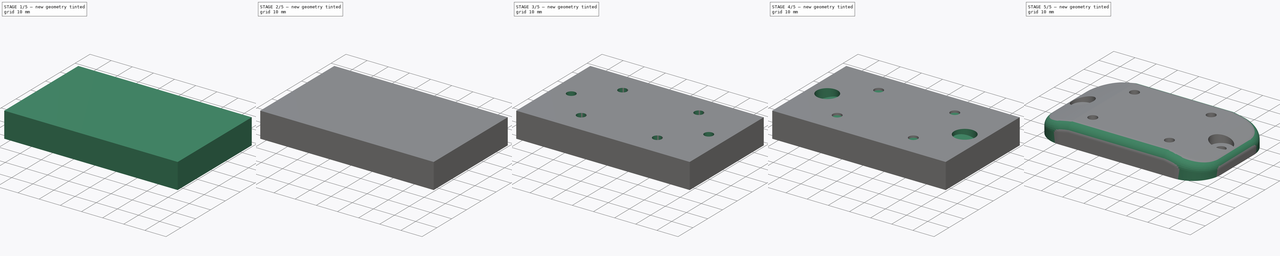
[diagram: build sequence overview — one tinted view per stage of 5, left to right]
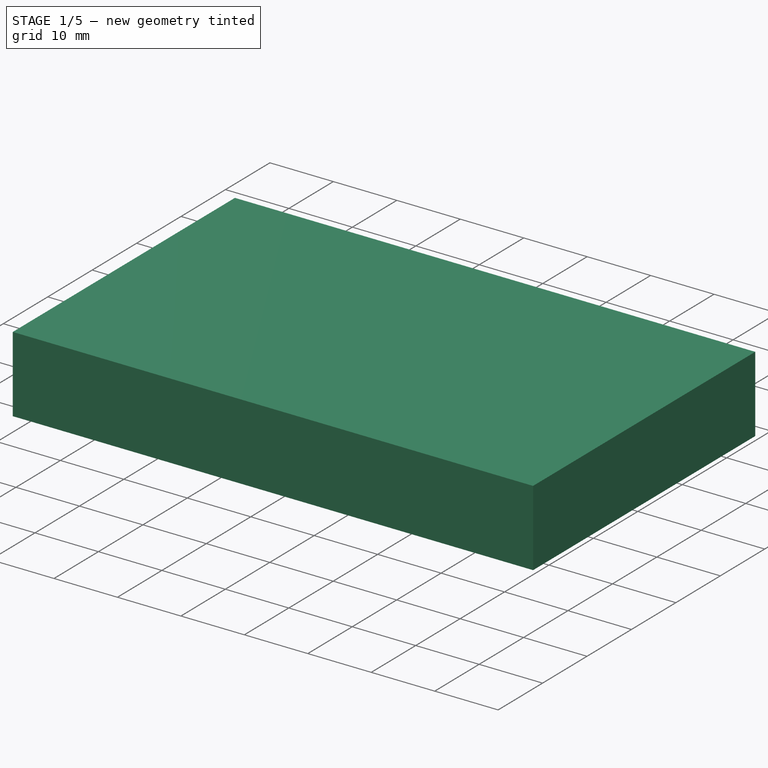
[diagram: stage 1 of 5 — iso view after this stage's code; geometry added in this stage tinted green]
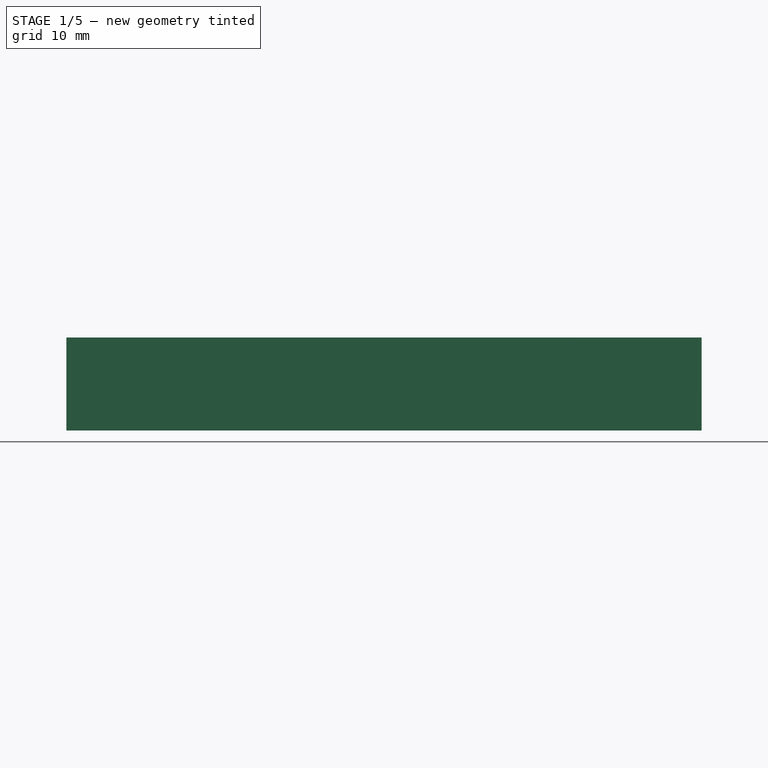
[diagram: stage 1 of 5 — front view after this stage's code; geometry added in this stage tinted green]
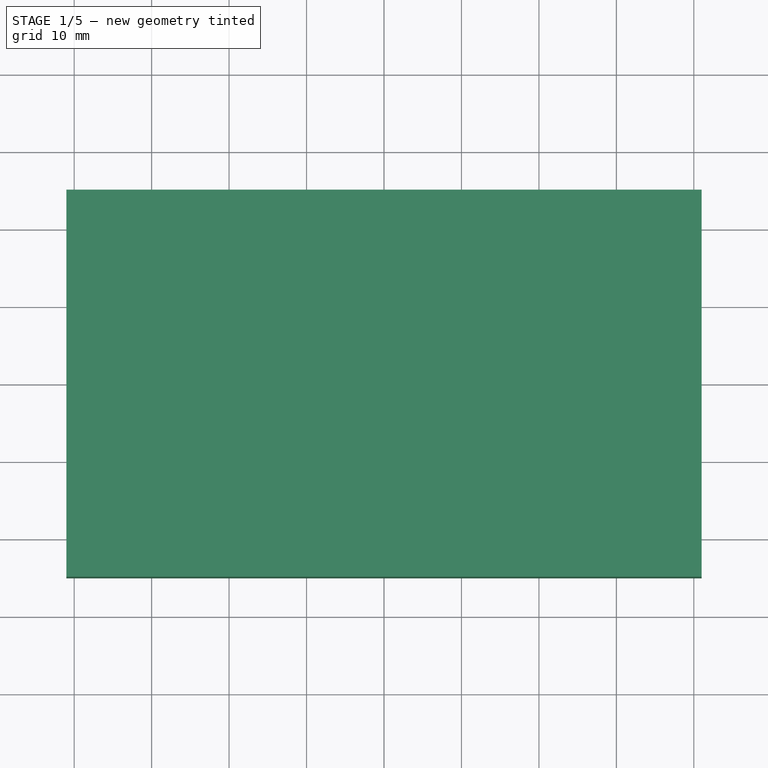
[diagram: stage 1 of 5 — top view after this stage's code; geometry added in this stage tinted green]
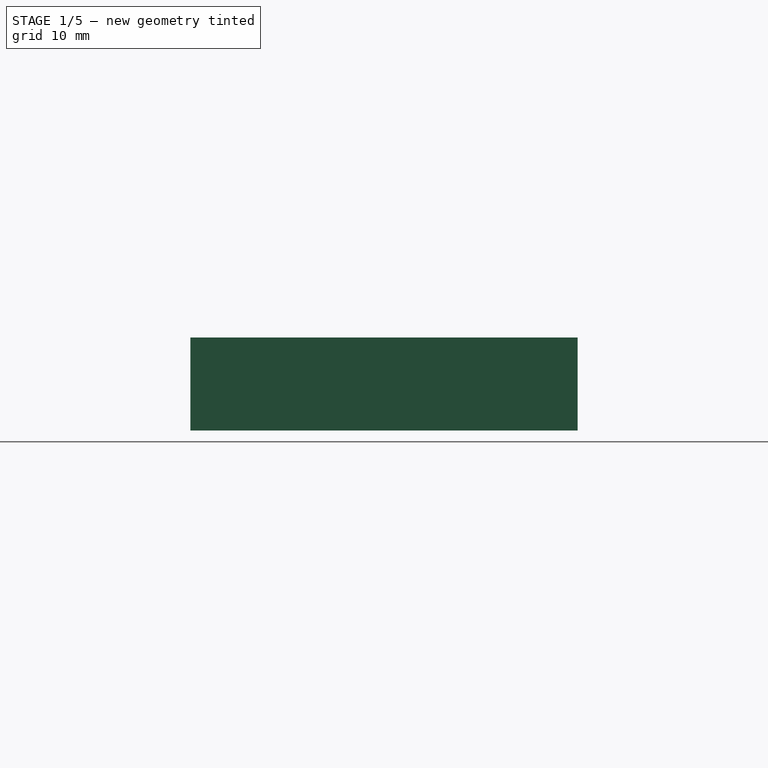
[diagram: stage 1 of 5 — right view after this stage's code; geometry added in this stage tinted green]
FCSTD DOCUMENT  (FreeCAD 0.17R13510 +12 (Git))
Label: caster_adapter
Comment: <copyright redacted>\nAll rights reserved.\n\nRedistribution and use in source and binary forms, with or without\nmodification, are permitted provided that the following conditions\nare... (+1106 chars)
License: All rights reserved
LicenseURL: http://en.wikipedia.org/wiki/All_rights_reserved
objects: Sketcher::SketchObject×11, PartDesign::Pad×7, PartDesign::Fillet×4, PartDesign::Pocket×4, PartDesign::Body×2, Part::MultiCommon×1
note: 40 computed .brp shape members not serialized (recipe doc carries the construction recipe); baked Part::Feature solids carry a one-line shape summary decoded from their .brp

FEATURE [PartDesign::Body] Body  label="Body外側形状"
  Group = -> [Sketch,Pad,Fillet,Fillet002]
  Origin = -> Origin
  Tip = -> Fillet002
FEATURE [Sketcher::SketchObject] Sketch010
  MapMode = 5
  Placement = pos=(0,0,0) rot=(1,0,0;1.5708rad)
  Support = -> [XZ_Plane001]
  sketch-geometry (4):
    g0: LineSegment StartX=-41 StartY=11 StartZ=0 EndX=41 EndY=11 EndZ=0
    g1: LineSegment StartX=41 StartY=11 StartZ=0 EndX=41 EndY=-1 EndZ=0
    g2: LineSegment StartX=41 StartY=-1 StartZ=0 EndX=-41 EndY=-1 EndZ=0
    g3: LineSegment StartX=-41 StartY=-1 StartZ=0 EndX=-41 EndY=11 EndZ=0
  constraints (12):
    c: Coincident(g0,g1)
    c: Coincident(g1,g2)
    c: Coincident(g2,g3)
    c: Coincident(g3,g0)
    c: Horizontal(g0)
    c: Horizontal(g2)
    c: Vertical(g1)
    c: Vertical(g3)
    c: Symmetric(g0,g0,g-2)
    c: DistanceX(g0,g0) = 82
    c: DistanceY(g2,g-1) = 1
    c: DistanceY(g-1,g0) = 11
FEATURE [PartDesign::Pad] Pad006  label="Pad001"
  Length = 50
  Length2 = 100
  Midplane = true
  Placement = pos=(0,0,0) rot=(1,0,0;1.5708rad)
  Profile = -> Sketch010
  Type = 0
FEATURE [PartDesign::Pocket] Pocket008
  BaseFeature = -> Pad006
  Length = 44
  Length2 = 100
  Midplane = true
  Placement = pos=(0,0,0) rot=(1,0,0;1.5708rad)
  Profile = -> Sketch001
  Type = 0
FEATURE [PartDesign::Fillet] Fillet003  label="Fillet内側縦"
  Base = -> Pocket008 [Edge18,Edge24,Edge19,Edge22]
  BaseFeature = -> Pocket008
  Placement = pos=(0,0,0) rot=(1,0,0;1.5708rad)
  Radius = 11
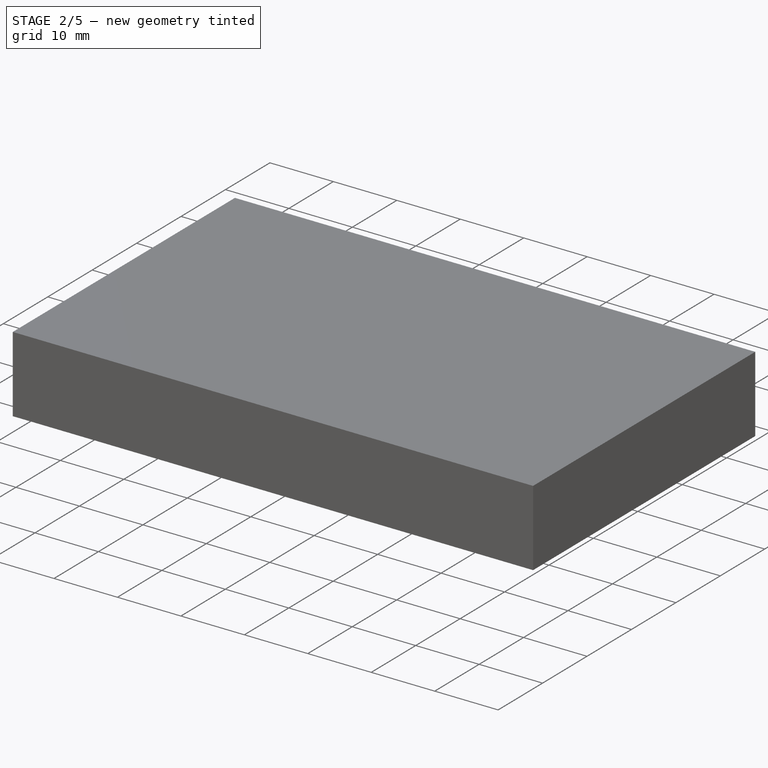
[diagram: stage 2 of 5 — iso view after this stage's code; geometry added in this stage tinted green]
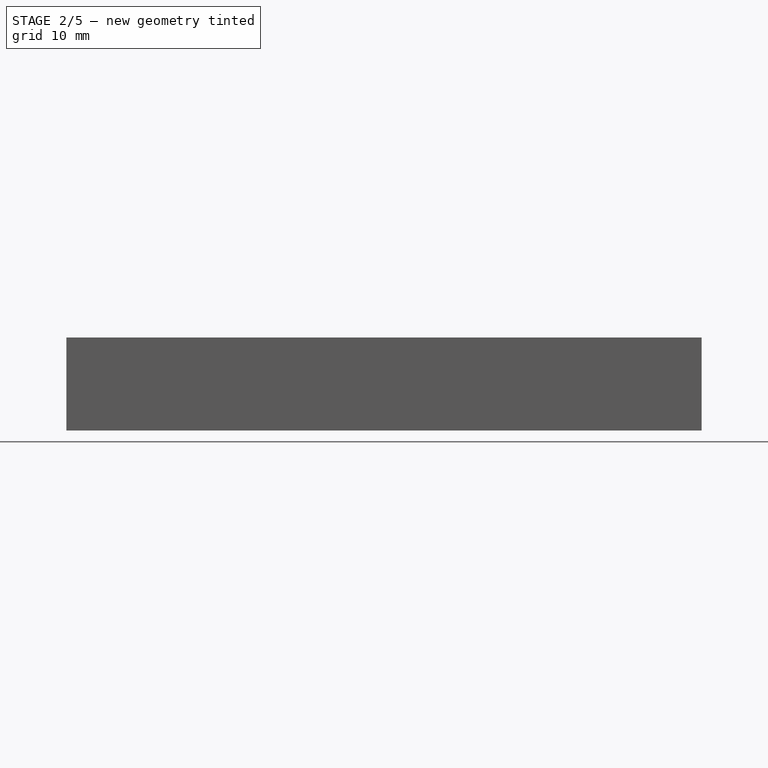
[diagram: stage 2 of 5 — front view after this stage's code; geometry added in this stage tinted green]
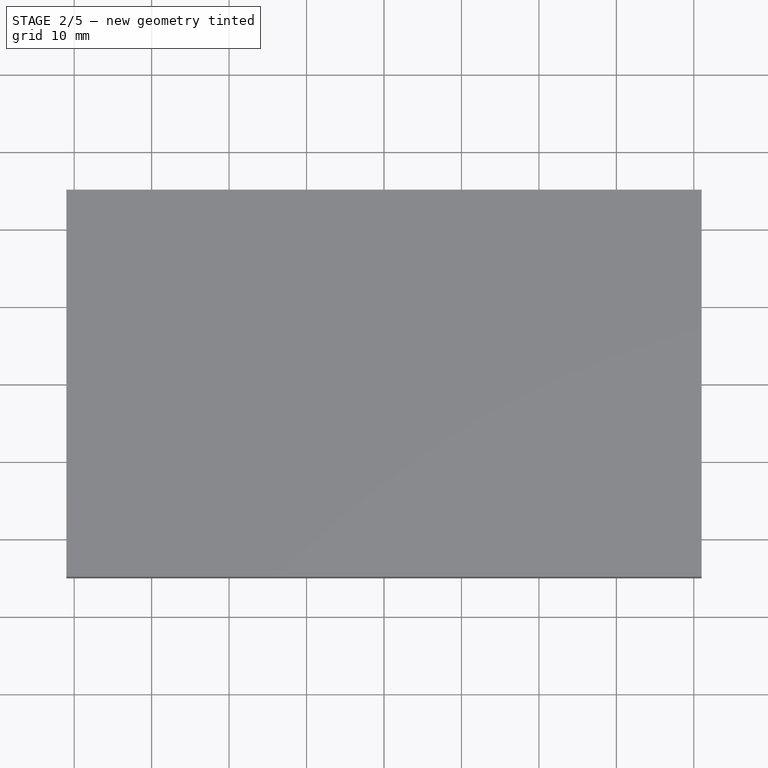
[diagram: stage 2 of 5 — top view after this stage's code; geometry added in this stage tinted green]
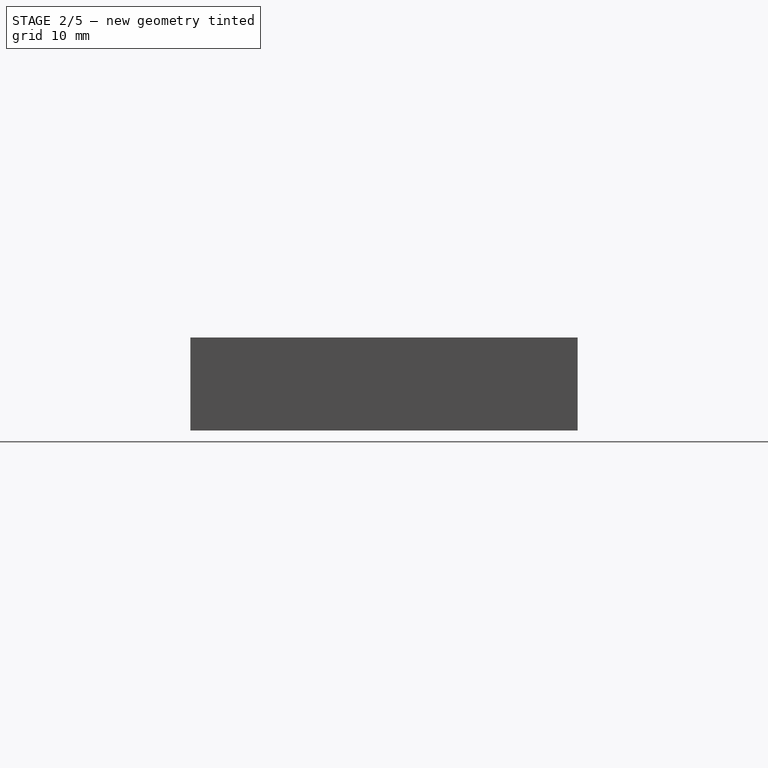
[diagram: stage 2 of 5 — right view after this stage's code; geometry added in this stage tinted green]
FEATURE [PartDesign::Fillet] Fillet004  label="Fillet内側一周"
  Base = -> Fillet003 [Face14,Face15,Face16]
  BaseFeature = -> Fillet003
  Placement = pos=(0,0,0) rot=(1,0,0;1.5708rad)
  Radius = 2
FEATURE [PartDesign::Pad] Pad011  label="Pad壁1"
  BaseFeature = -> Fillet004
  Length = 46
  Length2 = 100
  Midplane = true
  Placement = pos=(0,0,0) rot=(1,0,0;1.5708rad)
  Profile = -> Sketch007
  Type = 0
FEATURE [PartDesign::Pad] Pad012  label="Pad壁2a"
  BaseFeature = -> Pad011
  Length = 2
  Length2 = 100
  Midplane = true
  Placement = pos=(0,0,0) rot=(1,0,0;1.5708rad)
  Profile = -> Sketch008
  Type = 0
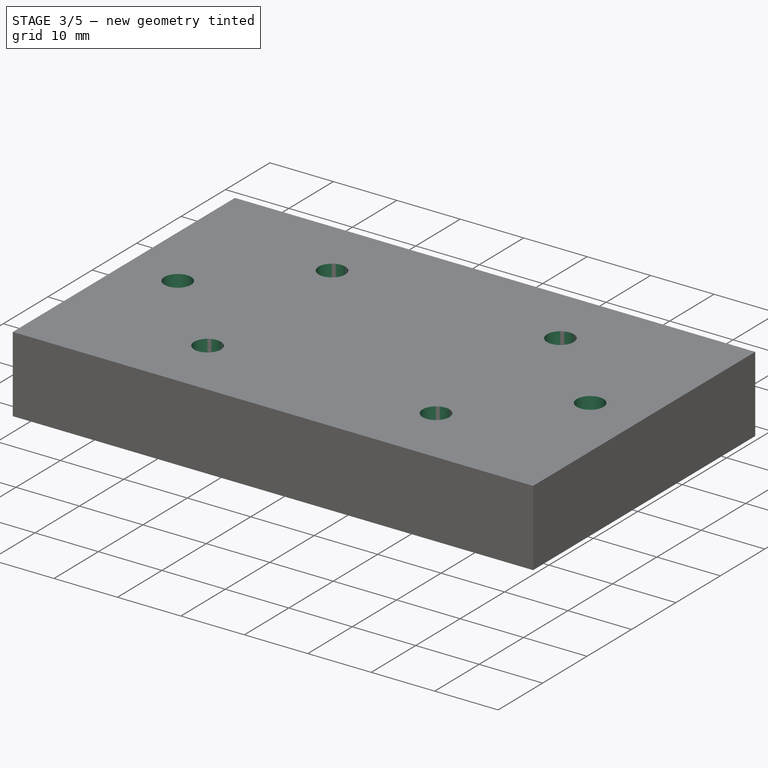
[diagram: stage 3 of 5 — iso view after this stage's code; geometry added in this stage tinted green]
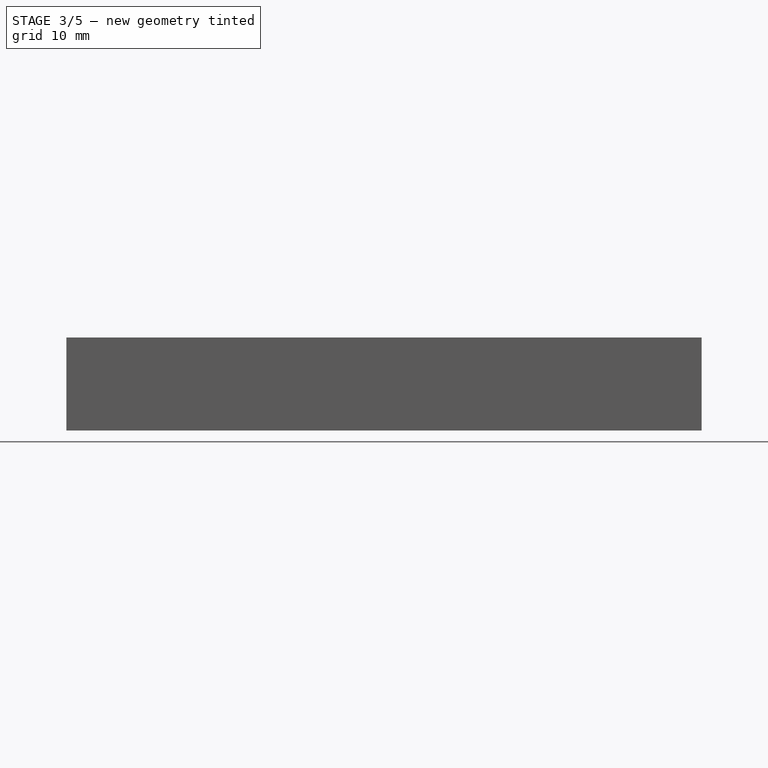
[diagram: stage 3 of 5 — front view after this stage's code; geometry added in this stage tinted green]
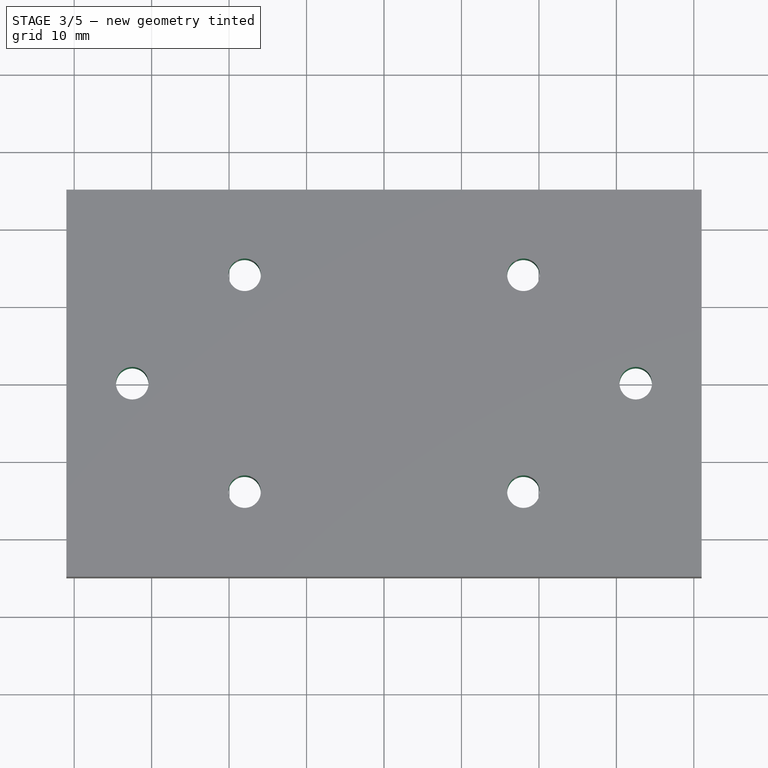
[diagram: stage 3 of 5 — top view after this stage's code; geometry added in this stage tinted green]
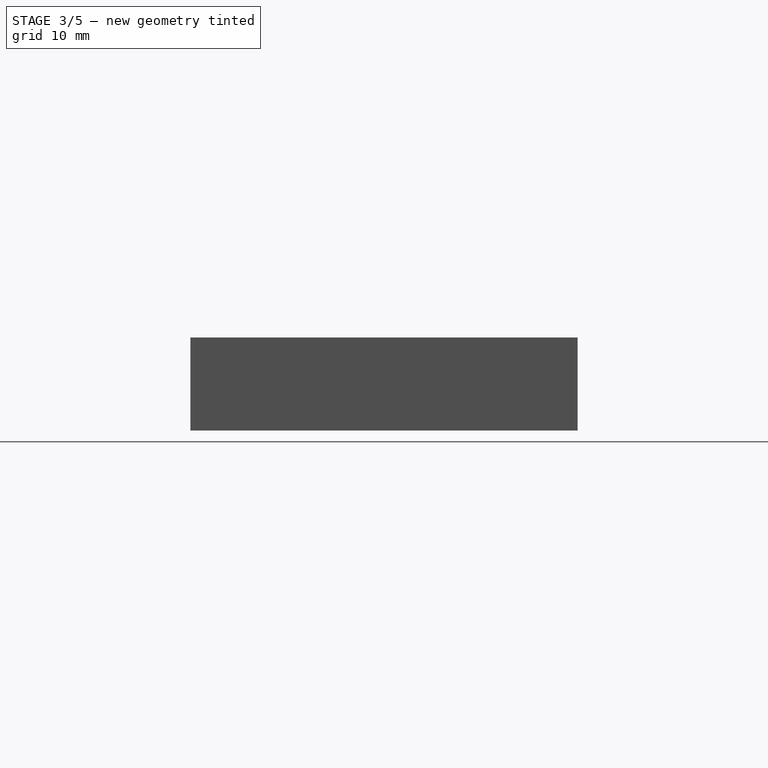
[diagram: stage 3 of 5 — right view after this stage's code; geometry added in this stage tinted green]
FEATURE [PartDesign::Pad] Pad013  label="Pad壁2b"
  BaseFeature = -> Pad012
  Length = 2
  Length2 = 100
  Midplane = true
  Placement = pos=(0,0,0) rot=(1,0,0;1.5708rad)
  Profile = -> Sketch009
  Type = 0
FEATURE [PartDesign::Pad] Pad014  label="Pad車輪側"
  BaseFeature = -> Pad013
  Length = 11
  Length2 = 1
  Placement = pos=(0,0,0) rot=(1,0,0;1.5708rad)
  Profile = -> Sketch002
  Type = 4
FEATURE [PartDesign::Pad] Pad015  label="Pad本体側"
  BaseFeature = -> Pad014
  Length = 11
  Length2 = 1
  Placement = pos=(0,0,0) rot=(1,0,0;1.5708rad)
  Profile = -> Sketch003
  Type = 4
FEATURE [PartDesign::Pocket] Pocket  label="Pocket穴"
  BaseFeature = -> Pad015
  Length = 5
  Length2 = 100
  Midplane = true
  Placement = pos=(0,0,0) rot=(1,0,0;1.5708rad)
  Profile = -> Sketch004
  Type = 1
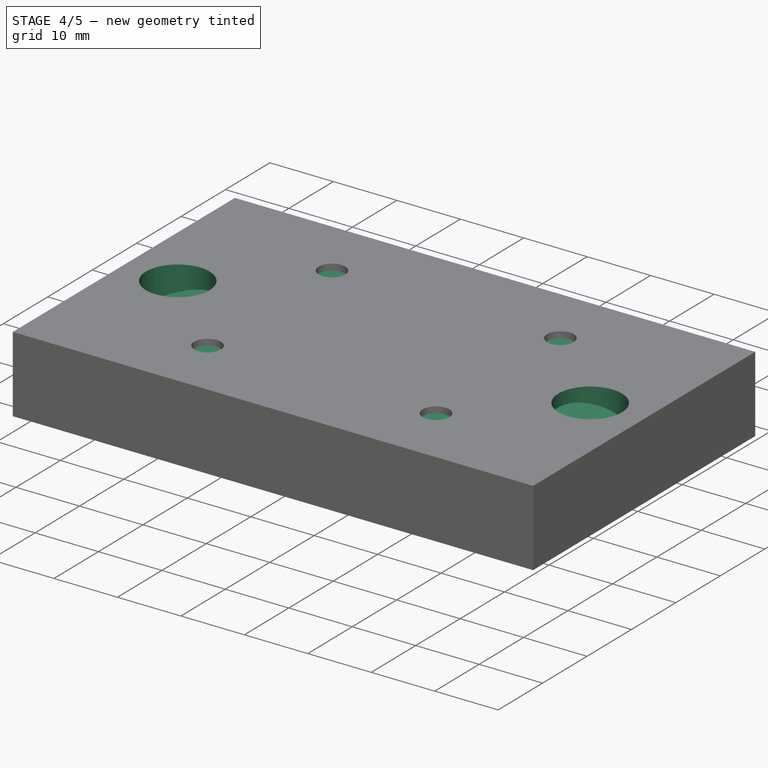
[diagram: stage 4 of 5 — iso view after this stage's code; geometry added in this stage tinted green]
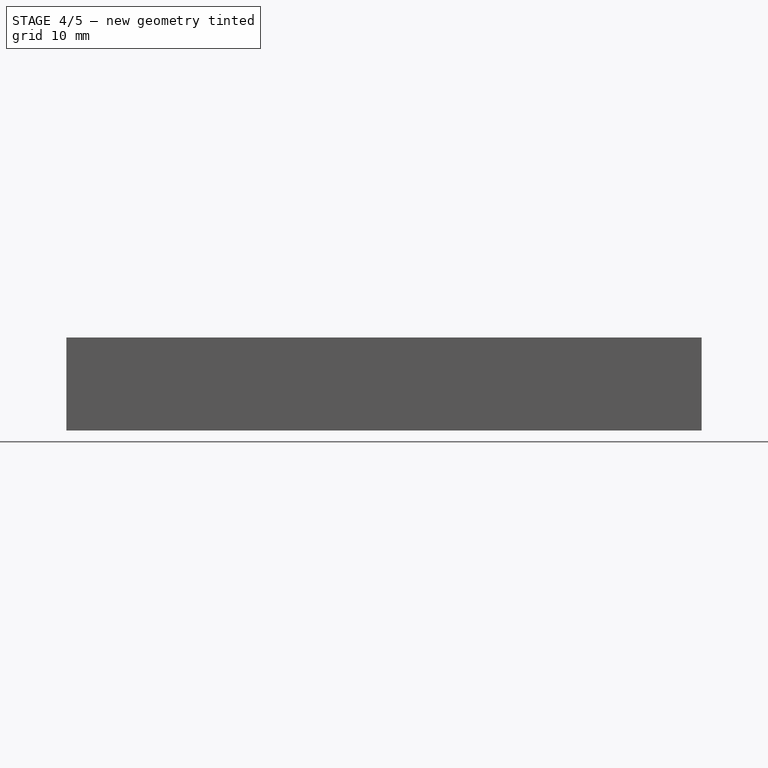
[diagram: stage 4 of 5 — front view after this stage's code; geometry added in this stage tinted green]
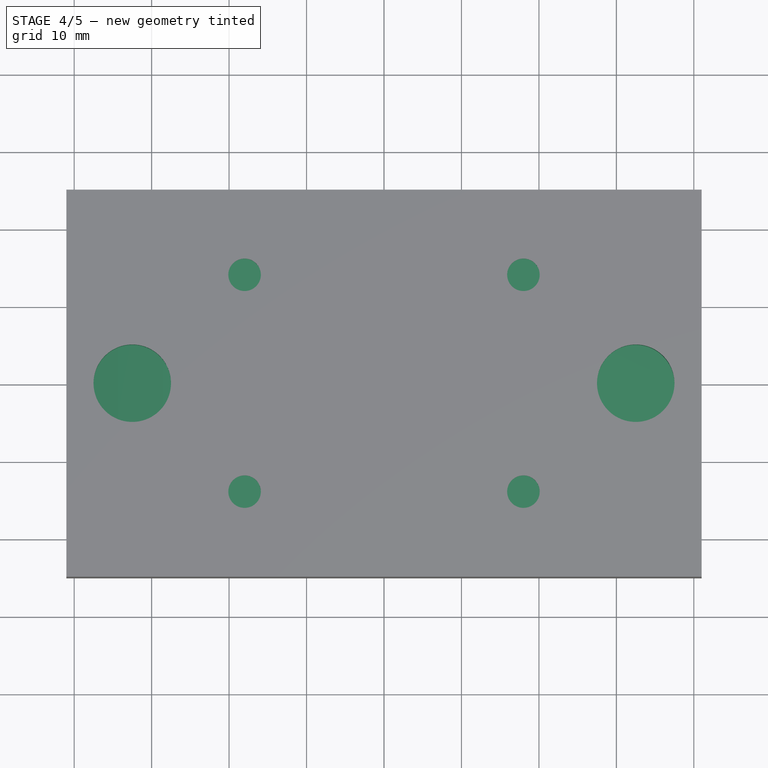
[diagram: stage 4 of 5 — top view after this stage's code; geometry added in this stage tinted green]
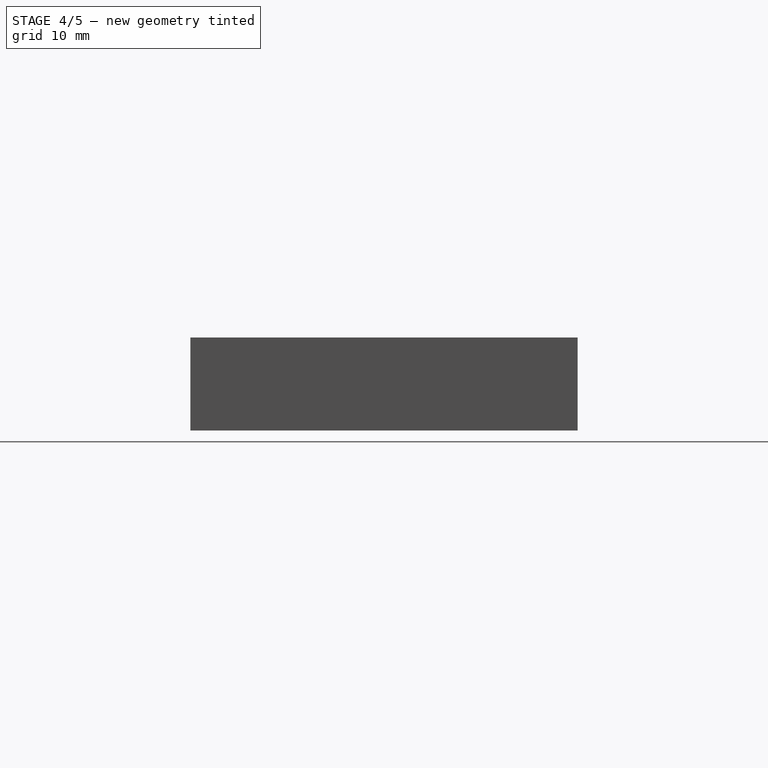
[diagram: stage 4 of 5 — right view after this stage's code; geometry added in this stage tinted green]
FEATURE [Sketcher::SketchObject] Sketch
  MapMode = 5
  Placement = pos=(0,0,0) rot=(1,0,0;1.5708rad)
  Support = -> [XZ_Plane]
  sketch-geometry (6):
    g0: LineSegment StartX=-40 StartY=5.69317 StartZ=0 EndX=-40 EndY=0 EndZ=0
    g1: LineSegment StartX=-40 StartY=0 StartZ=0 EndX=40 EndY=0 EndZ=0
    g2: LineSegment StartX=40 StartY=0 StartZ=0 EndX=40 EndY=5.69317 EndZ=0
    g3: ArcOfCircle CenterX=0 CenterY=-118 CenterZ=0 NormalX=0 NormalY=0 NormalZ=1 AngleXU=0 Radius=130 StartAngle=1.25803 EndAngle=1.39516
    g4: LineSegment StartX=22.7156 StartY=10 StartZ=0 EndX=-22.7156 EndY=10 EndZ=0
    g5: ArcOfCircle CenterX=0 CenterY=-118 CenterZ=0 NormalX=0 NormalY=0 NormalZ=1 AngleXU=0 Radius=130 StartAngle=1.74643 EndAngle=1.88356
  constraints (19):
    c: Vertical(g0)
    c: Coincident(g0,g1)
    c: Horizontal(g1)
    c: Coincident(g1,g2)
    c: Vertical(g2)
    c: Coincident(g3,g2)
    c: Coincident(g5,g0)
    c: Horizontal(g4)
    c: Equal(g3,g5)
    c: Coincident(g3,g4)
    c: Coincident(g5,g4)
    c: Coincident(g3,g5)
    c: PointOnObject(g3,g-2)
    c: PointOnObject(g0,g-1)
    c: Equal(g0,g2)
    c: Distance(g1) = 80
    c: Distance(g-1,g4) = 10
    c: DistanceY(g3,g-1) = 118
    c: Radius(g3) = 130
FEATURE [Sketcher::SketchObject] Sketch001
  MapMode = 5
  Placement = pos=(0,0,0) rot=(1,0,0;1.5708rad)
  Support = -> [XZ_Plane001]
  sketch-geometry (6):
    g0: LineSegment StartX=-38 StartY=4.22929 StartZ=0 EndX=-38 EndY=-1 EndZ=0
    g1: LineSegment StartX=-38 StartY=-1 StartZ=0 EndX=38 EndY=-1 EndZ=0
    g2: LineSegment StartX=38 StartY=-1 StartZ=0 EndX=38 EndY=4.22929 EndZ=0
    g3: ArcOfCircle CenterX=0 CenterY=-118 CenterZ=0 NormalX=0 NormalY=0 NormalZ=1 AngleXU=0 Radius=128 StartAngle=1.26938 EndAngle=1.39379
    g4: LineSegment StartX=22.5389 StartY=8 StartZ=0 EndX=-22.5389 EndY=8 EndZ=0
    g5: ArcOfCircle CenterX=0 CenterY=-118 CenterZ=0 NormalX=0 NormalY=0 NormalZ=1 AngleXU=0 Radius=128 StartAngle=1.7478 EndAngle=1.87221
  constraints (19):
    c: Vertical(g0)
    c: Coincident(g0,g1)
    c: Horizontal(g1)
    c: Coincident(g1,g2)
    c: Vertical(g2)
    c: Coincident(g3,g2)
    c: Coincident(g5,g0)
    c: Horizontal(g4)
    c: Equal(g3,g5)
    c: Coincident(g3,g4)
    c: Coincident(g5,g4)
    c: Coincident(g3,g5)
    c: PointOnObject(g3,g-2)
    c: Equal(g0,g2)
    c: Distance(g1) = 76
    c: Distance(g-1,g4) = 8
    c: DistanceY(g0,g-1) = 1
    c: DistanceY(g3,g-1) = 118
    c: Radius(g3) = 128
FEATURE [PartDesign::Pad] Pad
  Length = 48
  Length2 = 100
  Midplane = true
  Placement = pos=(0,0,0) rot=(1,0,0;1.5708rad)
  Profile = -> Sketch
  Type = 0
FEATURE [PartDesign::Pocket] Pocket009  label="Pocket車輪側"
  BaseFeature = -> Pocket
  Length = 1
  Length2 = 6
  Placement = pos=(0,0,0) rot=(1,0,0;1.5708rad)
  Profile = -> Sketch005
  Type = 4
FEATURE [PartDesign::Pocket] Pocket010  label="Pocket本体側"
  BaseFeature = -> Pocket009
  Length = 5
  Length2 = 100
  Placement = pos=(0,0,0) rot=(1,0,0;1.5708rad)
  Profile = -> Sketch006
  Reversed = true
  Type = 1
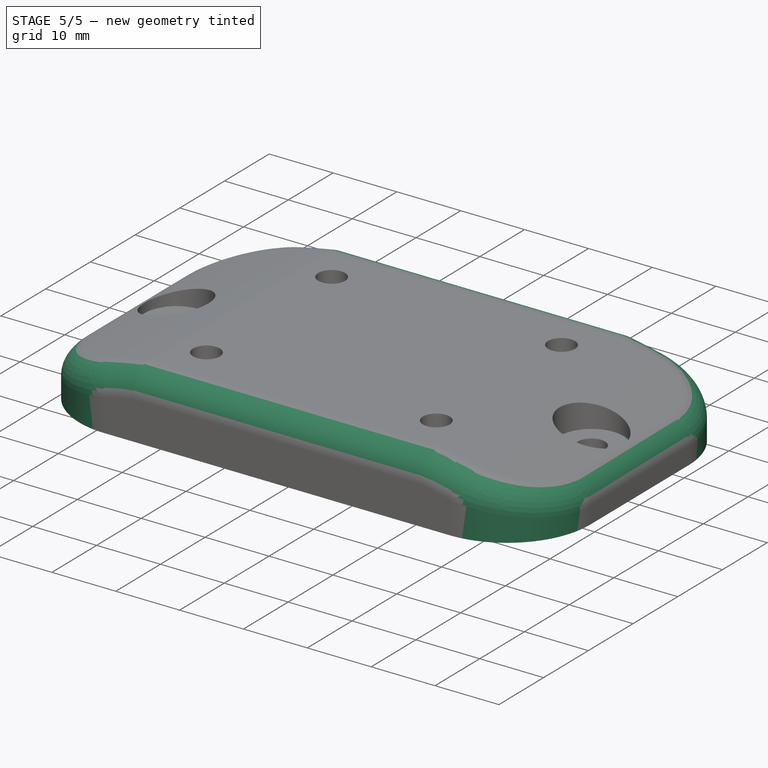
[diagram: stage 5 of 5 — iso view after this stage's code; geometry added in this stage tinted green]
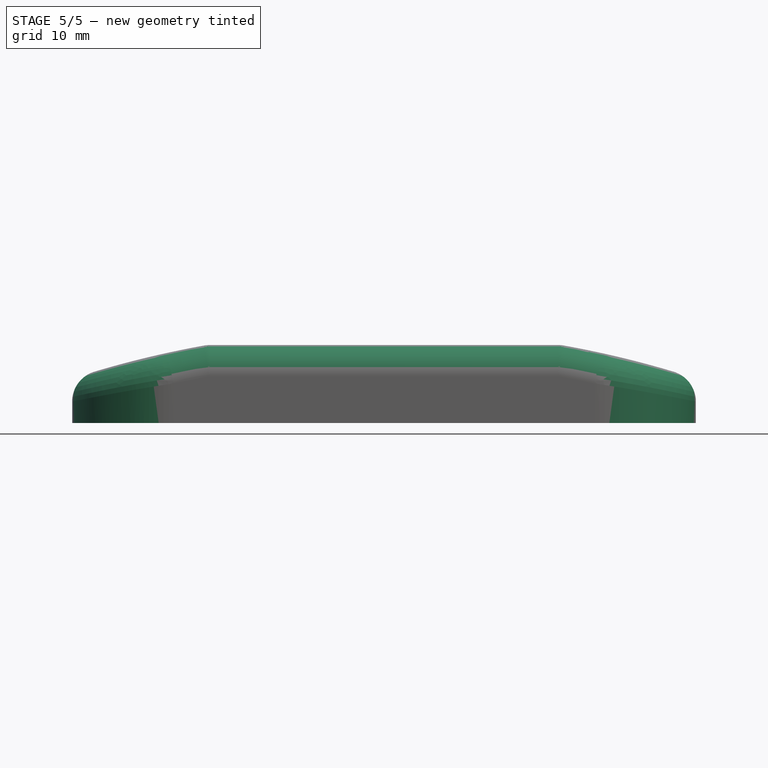
[diagram: stage 5 of 5 — front view after this stage's code; geometry added in this stage tinted green]
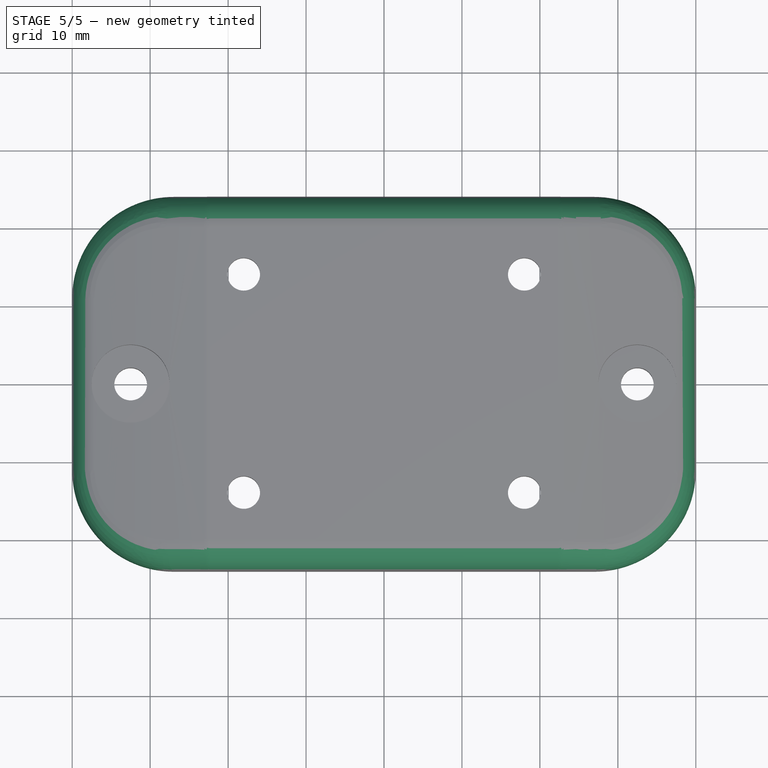
[diagram: stage 5 of 5 — top view after this stage's code; geometry added in this stage tinted green]
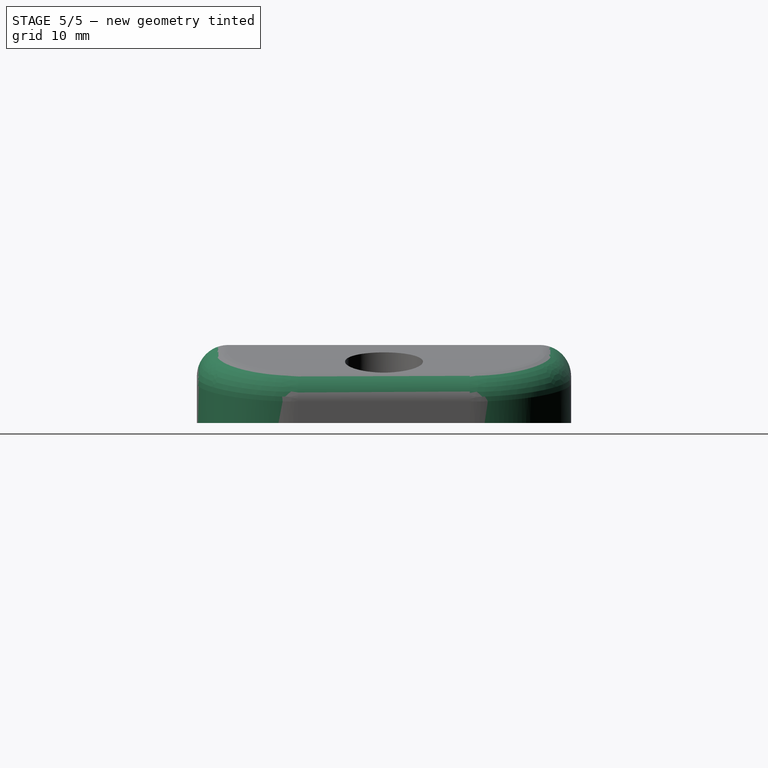
[diagram: stage 5 of 5 — right view after this stage's code; geometry added in this stage tinted green]
FEATURE [Sketcher::SketchObject] Sketch002
  MapMode = 5
  Support = -> [XY_Plane001]
  sketch-geometry (8):
    g0: LineSegment [constr] StartX=-18 StartY=14 StartZ=0 EndX=18 EndY=14 EndZ=0
    g1: LineSegment [constr] StartX=18 StartY=14 StartZ=0 EndX=18 EndY=-14 EndZ=0
    g2: LineSegment [constr] StartX=18 StartY=-14 StartZ=0 EndX=-18 EndY=-14 EndZ=0
    g3: LineSegment [constr] StartX=-18 StartY=-14 StartZ=0 EndX=-18 EndY=14 EndZ=0
    g4: Circle CenterX=-18 CenterY=14 CenterZ=0 NormalX=0 NormalY=0 NormalZ=1 AngleXU=0 Radius=7
    g5: Circle CenterX=-18 CenterY=-14 CenterZ=0 NormalX=0 NormalY=0 NormalZ=1 AngleXU=0 Radius=7
    g6: Circle CenterX=18 CenterY=-14 CenterZ=0 NormalX=0 NormalY=0 NormalZ=1 AngleXU=0 Radius=7
    g7: Circle CenterX=18 CenterY=14 CenterZ=0 NormalX=0 NormalY=0 NormalZ=1 AngleXU=0 Radius=7
  constraints (19):
    c: Coincident(g0,g1)
    c: Coincident(g1,g2)
    c: Coincident(g2,g3)
    c: Coincident(g3,g0)
    c: Horizontal(g0)
    c: Horizontal(g2)
    c: Vertical(g1)
    c: Vertical(g3)
    c: Symmetric(g0,g1,g-1)
    c: Distance(g1) = 28
    c: Distance(g0) = 36
    c: Coincident(g4,g0)
    c: Coincident(g5,g2)
    c: Coincident(g6,g1)
    c: Coincident(g7,g0)
    c: Equal(g4,g7)
    c: Equal(g4,g5)
    c: Equal(g4,g6)
    c: Radius(g4) = 7
FEATURE [Sketcher::SketchObject] Sketch003
  MapMode = 5
  Support = -> [XY_Plane001]
  sketch-geometry (2):
    g0: Circle CenterX=-32.5 CenterY=0 CenterZ=0 NormalX=0 NormalY=0 NormalZ=1 AngleXU=0 Radius=7
    g1: Circle CenterX=32.5 CenterY=0 CenterZ=0 NormalX=0 NormalY=0 NormalZ=1 AngleXU=0 Radius=7
  constraints (5):
    c: PointOnObject(g0,g-1)
    c: Equal(g0,g1)
    c: Symmetric(g1,g0,g-1)
    c: Distance(g0,g1) = 65
    c: Radius(g0) = 7
FEATURE [Sketcher::SketchObject] Sketch004
  MapMode = 5
  Support = -> [XY_Plane001]
  sketch-geometry (10):
    g0: LineSegment [constr] StartX=-18 StartY=14 StartZ=0 EndX=18 EndY=14 EndZ=0
    g1: LineSegment [constr] StartX=18 StartY=14 StartZ=0 EndX=18 EndY=-14 EndZ=0
    g2: LineSegment [constr] StartX=18 StartY=-14 StartZ=0 EndX=-18 EndY=-14 EndZ=0
    g3: LineSegment [constr] StartX=-18 StartY=-14 StartZ=0 EndX=-18 EndY=14 EndZ=0
    g4: Circle CenterX=-18 CenterY=14 CenterZ=0 NormalX=0 NormalY=0 NormalZ=1 AngleXU=0 Radius=2.1
    g5: Circle CenterX=18 CenterY=14 CenterZ=0 NormalX=0 NormalY=0 NormalZ=1 AngleXU=0 Radius=2.1
    g6: Circle CenterX=-18 CenterY=-14 CenterZ=0 NormalX=0 NormalY=0 NormalZ=1 AngleXU=0 Radius=2.1
    g7: Circle CenterX=18 CenterY=-14 CenterZ=0 NormalX=0 NormalY=0 NormalZ=1 AngleXU=0 Radius=2.1
    g8: Circle CenterX=-32.5 CenterY=0 CenterZ=0 NormalX=0 NormalY=0 NormalZ=1 AngleXU=0 Radius=2.1
    g9: Circle CenterX=32.5 CenterY=0 CenterZ=0 NormalX=0 NormalY=0 NormalZ=1 AngleXU=0 Radius=2.1
  constraints (24):
    c: Coincident(g0,g1)
    c: Coincident(g1,g2)
    c: Coincident(g2,g3)
    c: Coincident(g3,g0)
    c: Horizontal(g0)
    c: Horizontal(g2)
    c: Vertical(g1)
    c: Vertical(g3)
    c: Symmetric(g0,g1,g-1)
    c: Distance(g1) = 28
    c: Distance(g0) = 36
    c: Coincident(g4,g0)
    c: Coincident(g5,g0)
    c: Coincident(g6,g2)
    c: Coincident(g7,g1)
    c: PointOnObject(g8,g-1)
    c: Symmetric(g8,g9,g-1)
    c: Equal(g4,g5)
    c: Equal(g4,g9)
    c: Equal(g4,g8)
    c: Equal(g4,g6)
    c: Equal(g4,g7)
    c: DistanceX(g8,g9) = 65
    c: Radius(g4) = 2.1
FEATURE [Sketcher::SketchObject] Sketch005
  MapMode = 5
  Support = -> [XY_Plane001]
  sketch-geometry (8):
    g0: LineSegment [constr] StartX=-18 StartY=14 StartZ=0 EndX=18 EndY=14 EndZ=0
    g1: LineSegment [constr] StartX=18 StartY=14 StartZ=0 EndX=18 EndY=-14 EndZ=0
    g2: LineSegment [constr] StartX=18 StartY=-14 StartZ=0 EndX=-18 EndY=-14 EndZ=0
    g3: LineSegment [constr] StartX=-18 StartY=-14 StartZ=0 EndX=-18 EndY=14 EndZ=0
    g4: Circle CenterX=-18 CenterY=14 CenterZ=0 NormalX=0 NormalY=0 NormalZ=1 AngleXU=0 Radius=5
    g5: Circle CenterX=18 CenterY=14 CenterZ=0 NormalX=0 NormalY=0 NormalZ=1 AngleXU=0 Radius=5
    g6: Circle CenterX=18 CenterY=-14 CenterZ=0 NormalX=0 NormalY=0 NormalZ=1 AngleXU=0 Radius=5
    g7: Circle CenterX=-18 CenterY=-14 CenterZ=0 NormalX=0 NormalY=0 NormalZ=1 AngleXU=0 Radius=5
  constraints (19):
    c: Coincident(g0,g1)
    c: Coincident(g1,g2)
    c: Coincident(g2,g3)
    c: Coincident(g3,g0)
    c: Horizontal(g0)
    c: Horizontal(g2)
    c: Vertical(g1)
    c: Vertical(g3)
    c: Symmetric(g0,g1,g-1)
    c: Distance(g1) = 28
    c: Distance(g0) = 36
    c: Coincident(g4,g0)
    c: Coincident(g5,g0)
    c: Coincident(g6,g1)
    c: Coincident(g7,g2)
    c: Equal(g4,g5)
    c: Equal(g4,g7)
    c: Equal(g4,g6)
    c: Radius(g4) = 5
FEATURE [Sketcher::SketchObject] Sketch006
  MapMode = 5
  Placement = pos=(0,0,5) rot=(0,0,1;0rad)
  sketch-geometry (2):
    g0: Circle CenterX=-32.5 CenterY=0 CenterZ=0 NormalX=0 NormalY=0 NormalZ=1 AngleXU=0 Radius=5
    g1: Circle CenterX=32.5 CenterY=0 CenterZ=0 NormalX=0 NormalY=0 NormalZ=1 AngleXU=0 Radius=5
  constraints (5):
    c: PointOnObject(g0,g-1)
    c: Symmetric(g0,g1,g-1)
    c: Equal(g0,g1)
    c: Radius(g0) = 5
    c: DistanceX(g0,g1) = 65
FEATURE [Sketcher::SketchObject] Sketch007
  MapMode = 5
  Placement = pos=(0,0,0) rot=(1,0,0;1.5708rad)
  Support = -> [XZ_Plane001]
  sketch-geometry (12):
    g0: LineSegment StartX=-19 StartY=9 StartZ=0 EndX=-17 EndY=9 EndZ=0
    g1: LineSegment StartX=-17 StartY=9 StartZ=0 EndX=-17 EndY=-1 EndZ=0
    g2: LineSegment StartX=-17 StartY=-1 StartZ=0 EndX=-19 EndY=-1 EndZ=0
    g3: LineSegment StartX=-19 StartY=-1 StartZ=0 EndX=-19 EndY=9 EndZ=0
    g4: LineSegment StartX=-1 StartY=9 StartZ=0 EndX=1 EndY=9 EndZ=0
    g5: LineSegment StartX=1 StartY=9 StartZ=0 EndX=1 EndY=-1 EndZ=0
    g6: LineSegment StartX=1 StartY=-1 StartZ=0 EndX=-1 EndY=-1 EndZ=0
    g7: LineSegment StartX=-1 StartY=-1 StartZ=0 EndX=-1 EndY=9 EndZ=0
    g8: LineSegment StartX=17 StartY=9 StartZ=0 EndX=19 EndY=9 EndZ=0
    g9: LineSegment StartX=19 StartY=9 StartZ=0 EndX=19 EndY=-1 EndZ=0
    g10: LineSegment StartX=19 StartY=-1 StartZ=0 EndX=17 EndY=-1 EndZ=0
    g11: LineSegment StartX=17 StartY=-1 StartZ=0 EndX=17 EndY=9 EndZ=0
  constraints (36):
    c: Coincident(g0,g1)
    c: Coincident(g1,g2)
    c: Coincident(g2,g3)
    c: Coincident(g3,g0)
    c: Horizontal(g0)
    c: Horizontal(g2)
    c: Vertical(g1)
    c: Vertical(g3)
    c: Coincident(g4,g5)
    c: Coincident(g5,g6)
    c: Coincident(g6,g7)
    c: Coincident(g7,g4)
    c: Horizontal(g4)
    c: Horizontal(g6)
    c: Vertical(g5)
    c: Vertical(g7)
    c: Coincident(g8,g9)
    c: Coincident(g9,g10)
    c: Coincident(g10,g11)
    c: Coincident(g11,g8)
    c: Horizontal(g8)
    c: Horizontal(g10)
    c: Vertical(g9)
    c: Vertical(g11)
    c: Distance(g2) = 2
    c: Distance(g10) = 2
    c: Distance(g6) = 2
    c: DistanceX(g1,g-1) = 17
    c: DistanceX(g-1,g10) = 17
    c: DistanceY(g-1,g0) = 9
    c: DistanceY(g2,g-1) = 1
    c: DistanceY(g-1,g8) = 9
    c: DistanceY(g10,g-1) = 1
    c: DistanceY(g-1,g4) = 9
    c: DistanceY(g6,g-1) = 1
    c: Symmetric(g4,g4,g-2)
FEATURE [Sketcher::SketchObject] Sketch008
  MapMode = 5
  Placement = pos=(0,7.67,0) rot=(1,0,0;1.5708rad)
  sketch-geometry (6):
    g0: LineSegment StartX=-39 StartY=4.96341 StartZ=0 EndX=-39 EndY=-1 EndZ=0
    g1: LineSegment StartX=-39 StartY=-1 StartZ=0 EndX=39 EndY=-1 EndZ=0
    g2: LineSegment StartX=39 StartY=-1 StartZ=0 EndX=39 EndY=4.96341 EndZ=0
    g3: ArcOfCircle CenterX=0 CenterY=-118 CenterZ=0 NormalX=0 NormalY=0 NormalZ=1 AngleXU=0 Radius=129 StartAngle=1.26366 EndAngle=1.39448
    g4: LineSegment StartX=22.6274 StartY=9 StartZ=0 EndX=-22.6274 EndY=9 EndZ=0
    g5: ArcOfCircle CenterX=0 CenterY=-118 CenterZ=0 NormalX=0 NormalY=0 NormalZ=1 AngleXU=0 Radius=129 StartAngle=1.74711 EndAngle=1.87793
  constraints (19):
    c: Vertical(g0)
    c: Coincident(g0,g1)
    c: Horizontal(g1)
    c: Coincident(g1,g2)
    c: Vertical(g2)
    c: Coincident(g3,g2)
    c: Coincident(g5,g0)
    c: Horizontal(g4)
    c: Equal(g3,g5)
    c: Coincident(g3,g4)
    c: Coincident(g5,g4)
    c: Coincident(g3,g5)
    c: PointOnObject(g3,g-2)
    c: Equal(g0,g2)
    c: Distance(g1) = 78
    c: Distance(g-1,g4) = 9
    c: DistanceY(g0,g-1) = 1
    c: DistanceY(g3,g-1) = 118
    c: Radius(g3) = 129
FEATURE [Sketcher::SketchObject] Sketch009
  MapMode = 5
  Placement = pos=(0,-7.67,0) rot=(1,0,0;1.5708rad)
  sketch-geometry (6):
    g0: LineSegment StartX=-39 StartY=4.96341 StartZ=0 EndX=-39 EndY=-1 EndZ=0
    g1: LineSegment StartX=-39 StartY=-1 StartZ=0 EndX=39 EndY=-1 EndZ=0
    g2: LineSegment StartX=39 StartY=-1 StartZ=0 EndX=39 EndY=4.96341 EndZ=0
    g3: ArcOfCircle CenterX=0 CenterY=-118 CenterZ=0 NormalX=0 NormalY=0 NormalZ=1 AngleXU=0 Radius=129 StartAngle=1.26366 EndAngle=1.39448
    g4: LineSegment StartX=22.6274 StartY=9 StartZ=0 EndX=-22.6274 EndY=9 EndZ=0
    g5: ArcOfCircle CenterX=0 CenterY=-118 CenterZ=0 NormalX=0 NormalY=0 NormalZ=1 AngleXU=0 Radius=129 StartAngle=1.74711 EndAngle=1.87793
  constraints (19):
    c: Vertical(g0)
    c: Coincident(g0,g1)
    c: Horizontal(g1)
    c: Coincident(g1,g2)
    c: Vertical(g2)
    c: Coincident(g3,g2)
    c: Coincident(g5,g0)
    c: Horizontal(g4)
    c: Equal(g3,g5)
    c: Coincident(g3,g4)
    c: Coincident(g5,g4)
    c: Coincident(g3,g5)
    c: PointOnObject(g3,g-2)
    c: Equal(g0,g2)
    c: Distance(g1) = 78
    c: Distance(g-1,g4) = 9
    c: DistanceY(g0,g-1) = 1
    c: DistanceY(g3,g-1) = 118
    c: Radius(g3) = 129
FEATURE [PartDesign::Fillet] Fillet  label="Fillet外側縦"
  Base = -> Pad [Edge4,Edge10,Edge3,Edge9]
  BaseFeature = -> Pad
  Placement = pos=(0,0,0) rot=(1,0,0;1.5708rad)
  Radius = 13
FEATURE [PartDesign::Fillet] Fillet002  label="Fillet外側一周"
  Base = -> Fillet [Face2,Face8,Face12]
  BaseFeature = -> Fillet
  Placement = pos=(0,0,0) rot=(1,0,0;1.5708rad)
  Radius = 4
FEATURE [PartDesign::Body] Body001  label="Body内側形状"
  Group = -> [Sketch010,Pad006,Pocket008,Sketch001,Fillet003,Fillet004,Pad011,Pad012,Pad013,Pad014,Pad015,Pocket,Pocket009,Sketch007,Sketch008,Sketch009,Sketch002,Sketch003,Sketch004,Sketch005,Sketch006,Pocket010]
  Origin = -> Origin001
  Tip = -> Pocket010
FEATURE [Part::MultiCommon] Common
  Shapes = -> [Body,Body001]
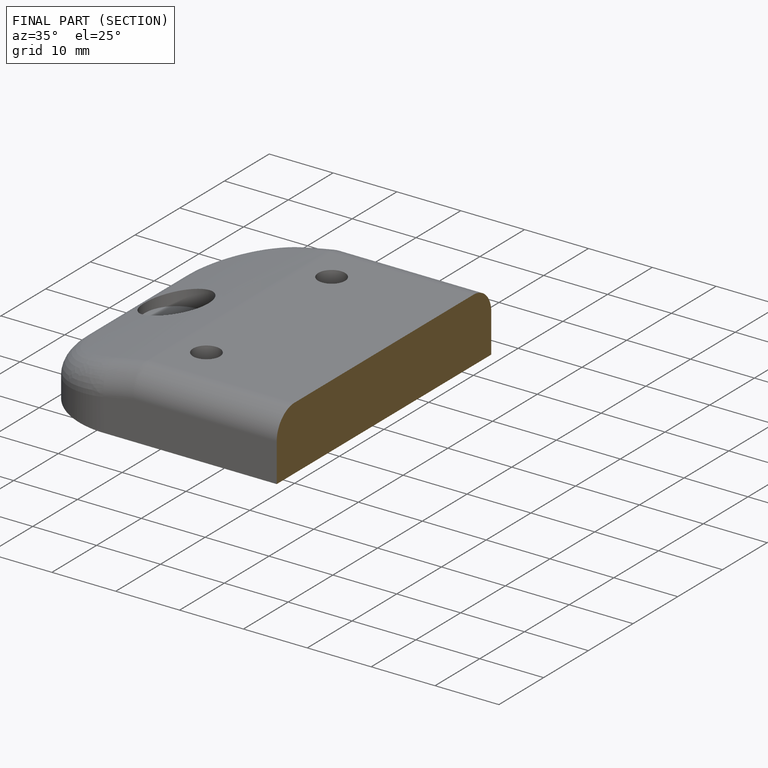
[diagram: finished part — half-section view (interior)]
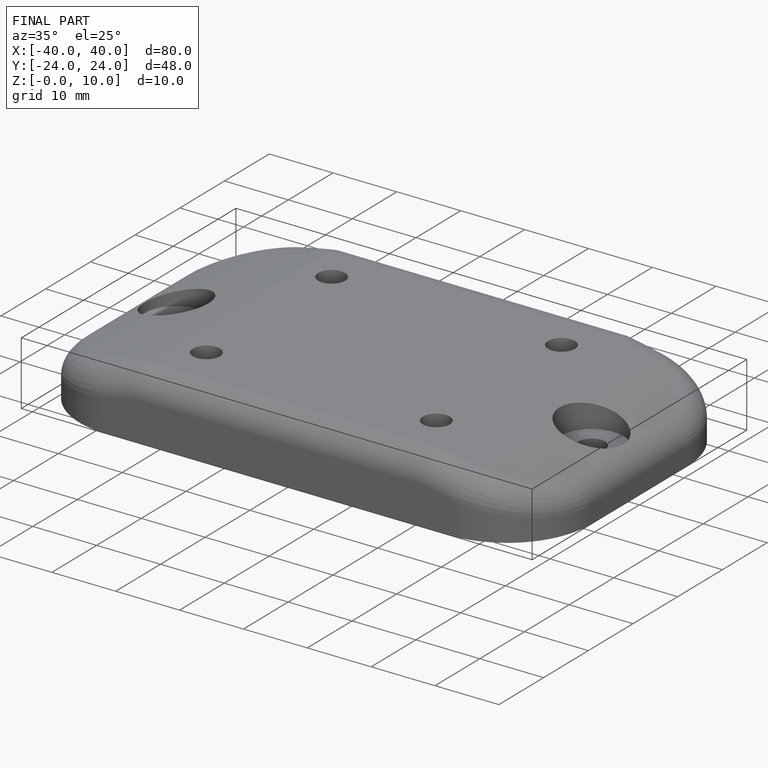
[diagram: finished part — iso view with bounding-box wireframe]
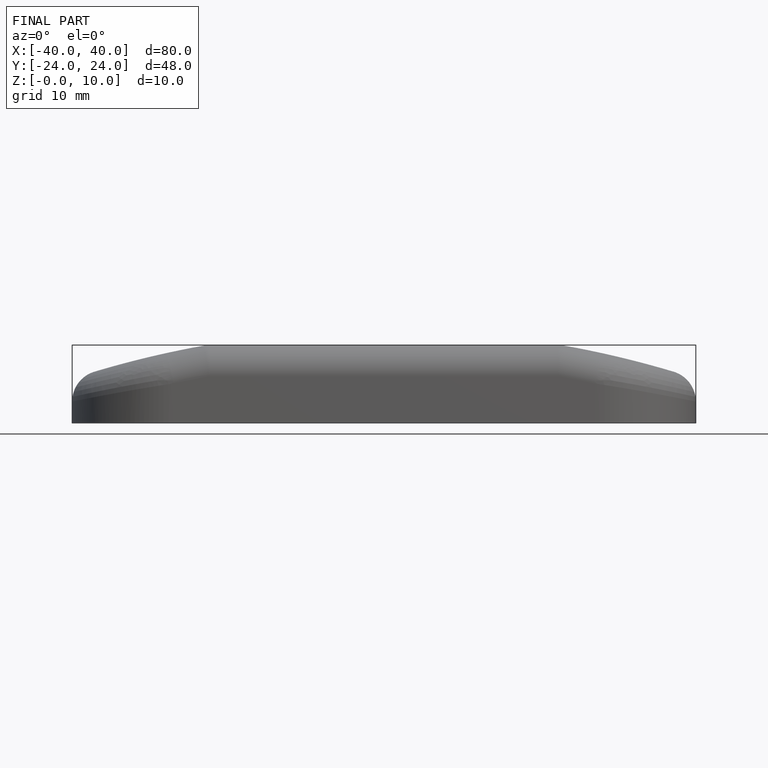
[diagram: finished part — front view with bounding-box wireframe]
